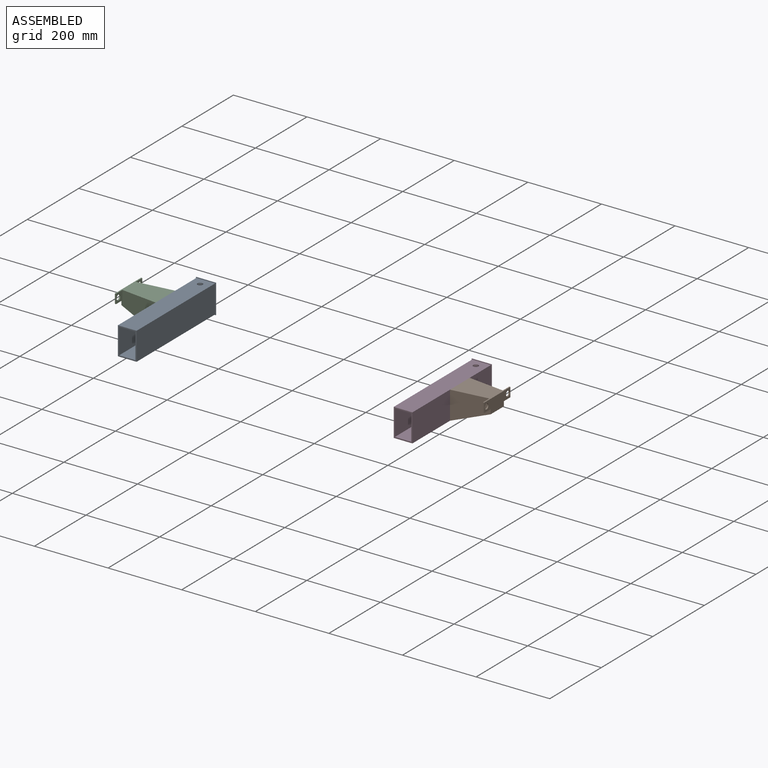
[diagram: assembled view]
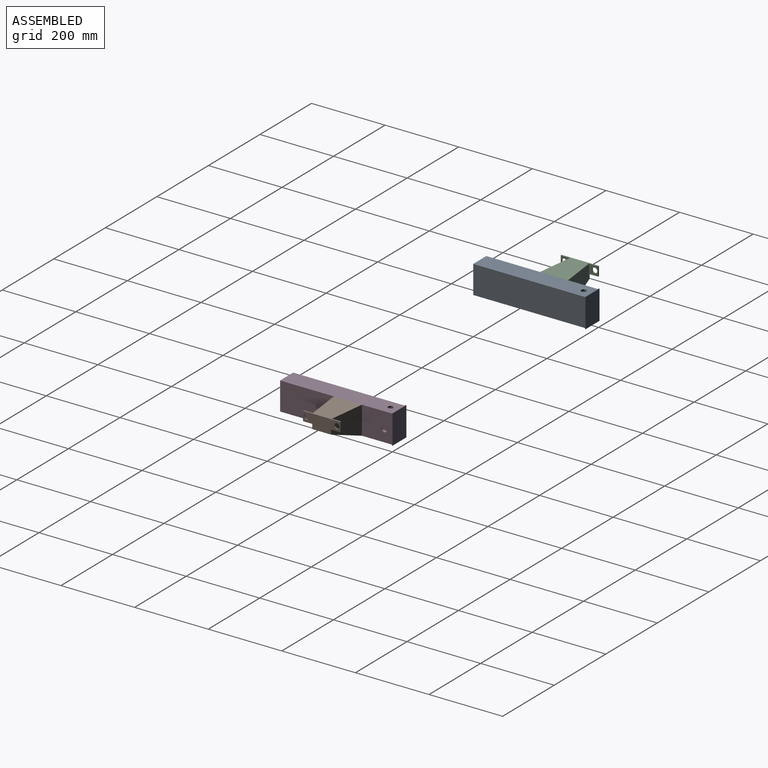
[diagram: assembled view, second angle]
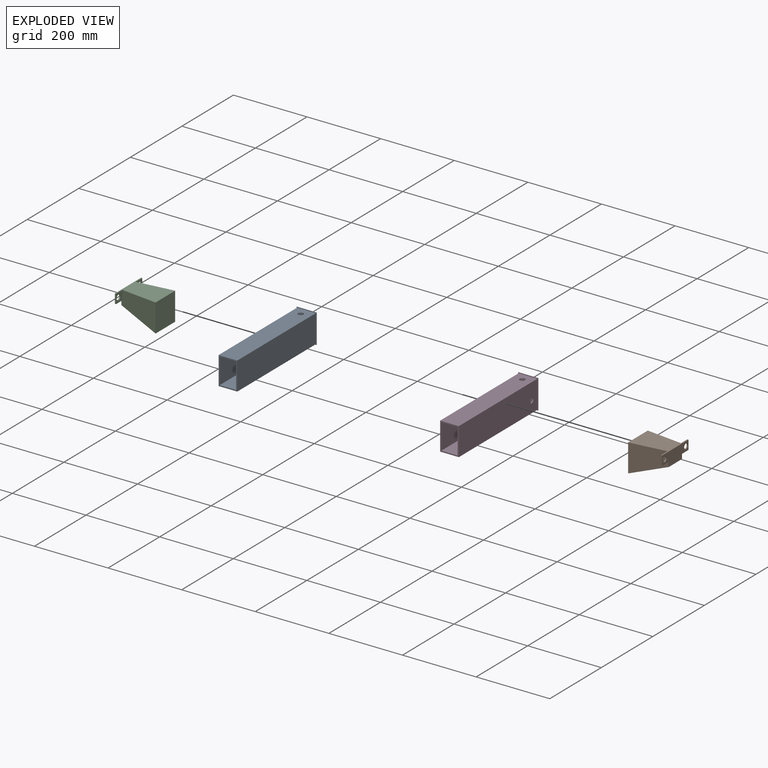
[diagram: exploded view]
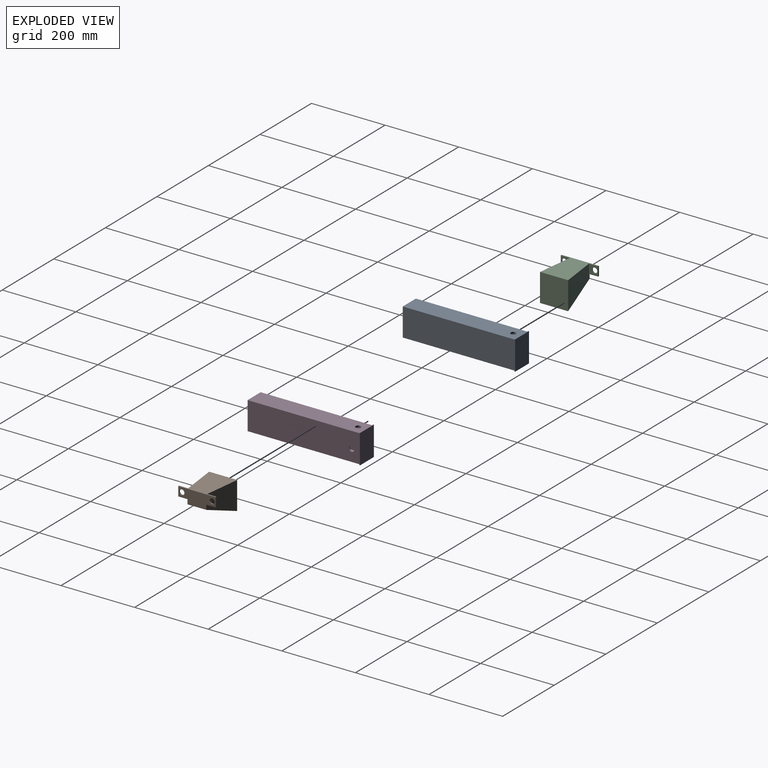
[diagram: exploded view, second angle]
ASSEMBLY  parts=4 mates=2
PART A: 20 faces, bbox 54x306.4x79.4 mm
  f0: plane 76.2x50.8mm, normal (0,-1,0), area 766.1mm2, adj f1,f2,f3,f4,f5,f6,f7,f8
  f1: plane 304.8x50.8mm, normal (0,0,1), area 15324.9mm2, adj f0,f2,f4,f11,f12
  f2: plane 304.8x76.2mm, normal (-1,0,0), area 23066.9mm2, adj f0,f1,f3,f10,f12
  f3: plane 304.8x50.8mm, normal (0,0,-1), area 15088mm2, adj f0,f2,f4,f12,f18,f19
  f4: plane 304.8x76.2mm, normal (1,0,0), area 23225.8mm2, adj f0,f1,f3,f12
  f5: plane 301.63x44.45mm, normal (0,0,-1), area 13248.3mm2, adj f0,f6,f8,f9,f11
  f6: plane 301.63x69.85mm, normal (1,0,0), area 20909.6mm2, adj f0,f5,f7,f9,f10
  f7: plane 301.63x44.45mm, normal (0,0,1), area 13011.4mm2, adj f0,f6,f8,f9,f18,f19
  f8: plane 301.63x69.85mm, normal (-1,0,0), area 21068.5mm2, adj f0,f5,f7,f9
  f9: plane 69.85x44.45mm, normal (0,-1,0), area 3104.8mm2, adj f5,f6,f7,f8
  f10: cylinder r=7.11mm len=14.22mm, axis (-1,0,0), area 141.9mm2, adj f2,f6
  f11: cylinder r=7.11mm len=14.22mm, axis (0,0,1), area 141.9mm2, adj f1,f5
  f12: plane 79.38x53.98mm, normal (0,-1,0), area 413.3mm2, adj f1,f2,f3,f4,f13,f14,f15,f16
  f13: plane 53.98x1.59mm, normal (0,0,1), area 85.7mm2, adj f12,f14,f16,f17
  f14: plane 79.38x1.59mm, normal (1,0,0), area 126mm2, adj f12,f13,f15,f17
  f15: plane 53.98x1.59mm, normal (0,0,-1), area 85.7mm2, adj f12,f14,f16,f17
  f16: plane 79.38x1.59mm, normal (-1,0,0), area 126mm2, adj f12,f13,f15,f17
  f17: plane 79.38x53.98mm, normal (0,1,0), area 4284.3mm2, adj f13,f14,f15,f16
  f18: cylinder r=7.94mm len=15.88mm, axis (0,0,-1), area 158.3mm2, adj f3,f7
  f19: cylinder r=7.94mm len=15.88mm, axis (0,0,-1), area 158.3mm2, adj f3,f7
PART B: 19 faces, bbox 101.6x101.6x76.2 mm
  f0: plane 101.6x38.1mm, normal (0,-1,0), area 2913.7mm2, adj f1,f2,f4,f5,f6,f8,f9,f10
  f1: plane 101.6x76.2mm, normal (0,-0.35,-0.94), area 1083mm2, adj f0,f3,f4,f5,f13,f14,f15,f16
  f2: plane 101.6x101.6mm, normal (0,0,1), area 6633.1mm2, adj f0,f3,f4,f5,f7,f8,f10,f11
  f3: plane 76.2x76.2mm, normal (0,1,0), area 5806.4mm2, adj f1,f2,f4,f5
  f4: plane 101.6x76.2mm, normal (0.99,-0.12,0), area 5768.8mm2, adj f0,f1,f2,f3,f9,f11
  f5: plane 101.6x76.2mm, normal (-0.99,-0.12,0), area 5768.8mm2, adj f0,f1,f2,f3,f6,f7
  f6: plane 25.18x3.18mm, normal (0,0,-1), area 79.3mm2, adj f0,f5,f7,f8
  f7: plane 25.4x24.79mm, normal (0,1,0), area 470.6mm2, adj f2,f5,f6,f8,f18
  f8: plane 25.4x3.18mm, normal (-1,0,0), area 80.6mm2, adj f0,f2,f6,f7
  f9: plane 25.18x3.18mm, normal (0,0,-1), area 79.3mm2, adj f0,f4,f10,f11
  f10: plane 25.4x3.18mm, normal (1,0,0), area 80.6mm2, adj f0,f2,f9,f11
  f11: plane 25.4x24.79mm, normal (0,1,0), area 470.6mm2, adj f2,f4,f9,f10,f17
  f12: plane 95.25x69.02mm, normal (0,0,-1), area 5460.4mm2, adj f13,f14,f15,f16
  f13: plane 45.63x36.12mm, normal (0,1,0), area 1648mm2, adj f1,f12,f15,f16
  f14: plane 71.83x69.02mm, normal (0,-1,0), area 4958.2mm2, adj f1,f12,f15,f16
  f15: plane 95.25x71.83mm, normal (-0.99,0.12,0), area 5179.7mm2, adj f1,f12,f13,f14
  f16: plane 95.25x71.83mm, normal (0.99,0.12,0), area 5179.7mm2, adj f1,f12,f13,f14
  f17: cylinder r=7.11mm len=14.22mm, axis (0,-1,0), area 141.9mm2, adj f0,f11
  f18: cylinder r=7.11mm len=14.22mm, axis (0,-1,0), area 141.9mm2, adj f0,f7
PART C: same geometry as B
PART D: 20 faces, bbox 54x306.4x79.4 mm
  f0: plane 76.2x50.8mm, normal (0,-1,0), area 766.1mm2, adj f1,f2,f3,f4,f5,f6,f7,f8
  f1: plane 304.8x50.8mm, normal (0,0,1), area 15324.9mm2, adj f0,f2,f4,f11,f12
  f2: plane 304.8x76.2mm, normal (1,0,0), area 23066.9mm2, adj f0,f1,f3,f10,f12
  f3: plane 304.8x50.8mm, normal (0,0,-1), area 15088mm2, adj f0,f2,f4,f12,f18,f19
  f4: plane 304.8x76.2mm, normal (-1,0,0), area 23225.8mm2, adj f0,f1,f3,f12
  f5: plane 301.63x44.45mm, normal (0,0,-1), area 13248.3mm2, adj f0,f6,f8,f9,f11
  f6: plane 301.63x69.85mm, normal (-1,0,0), area 20909.6mm2, adj f0,f5,f7,f9,f10
  f7: plane 301.63x44.45mm, normal (0,0,1), area 13011.4mm2, adj f0,f6,f8,f9,f18,f19
  f8: plane 301.63x69.85mm, normal (1,0,0), area 21068.5mm2, adj f0,f5,f7,f9
  f9: plane 69.85x44.45mm, normal (0,-1,0), area 3104.8mm2, adj f5,f6,f7,f8
  f10: cylinder r=7.11mm len=14.22mm, axis (1,0,0), area 141.9mm2, adj f2,f6
  f11: cylinder r=7.11mm len=14.22mm, axis (0,0,1), area 141.9mm2, adj f1,f5
  f12: plane 79.38x53.98mm, normal (0,-1,0), area 413.3mm2, adj f1,f2,f3,f4,f13,f14,f15,f16
  f13: plane 53.98x1.59mm, normal (0,0,1), area 85.7mm2, adj f12,f14,f16,f17
  f14: plane 79.38x1.59mm, normal (-1,0,0), area 126mm2, adj f12,f13,f15,f17
  f15: plane 53.98x1.59mm, normal (0,0,-1), area 85.7mm2, adj f12,f14,f16,f17
  f16: plane 79.38x1.59mm, normal (1,0,0), area 126mm2, adj f12,f13,f15,f17
  f17: plane 79.38x53.98mm, normal (0,1,0), area 4284.3mm2, adj f13,f14,f15,f16
  f18: cylinder r=7.94mm len=15.88mm, axis (0,0,-1), area 158.3mm2, adj f3,f7
  f19: cylinder r=7.94mm len=15.88mm, axis (0,0,-1), area 158.3mm2, adj f3,f7
PLACE A at identity fixed
PLACE B rot(axis=(0,0,1),90deg) t=(501.65,-158.75,38.1)mm
PLACE C rot(axis=(0,0,-1),90deg) t=(-501.65,-82.55,38.1)mm
PLACE D at identity fixed
MATE fastened D.f2 <-> B.f3  axis (1,0,0) through (400.05,-120.65,0)mm
MATE fastened A.f2 <-> C.f3  axis (1,0,0) through (-400.05,-120.65,0)mm
